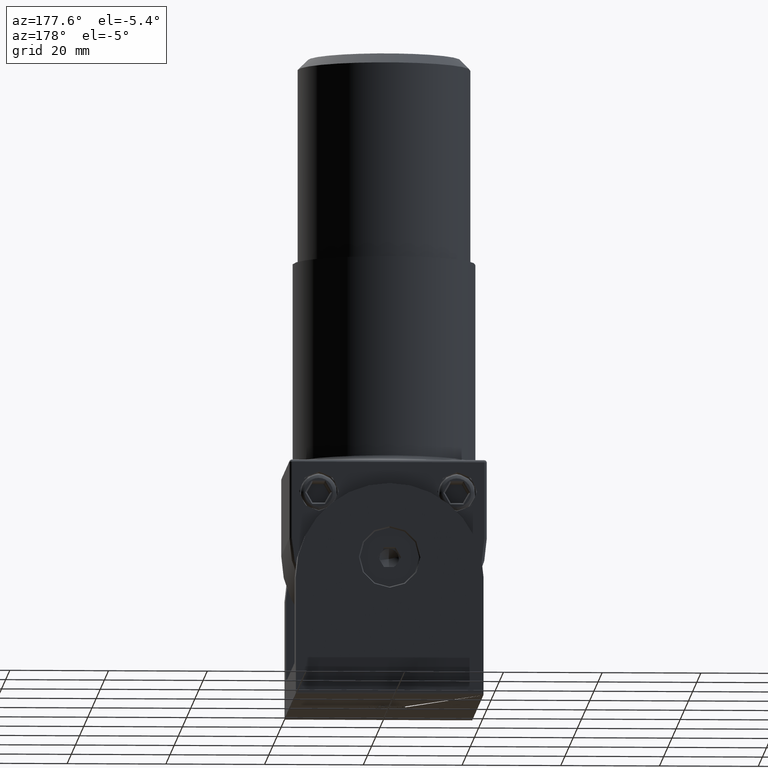
[diagram: clean part render]
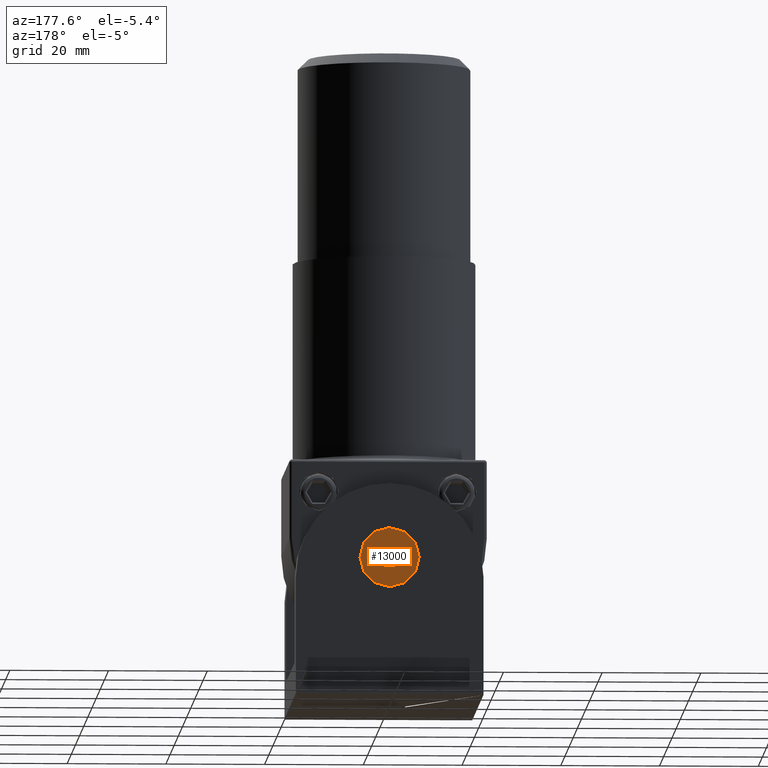
[diagram: same view with one face highlighted and labeled with its STEP entity id]
A machine part, auxiliary view. The second image highlights one B-rep face of the part: STEP entity #13000.
In plain terms, the highlighted planar face has unit normal (0, 1, 0).
Its self-contained STEP definition (entity closure, byte-faithful):
#65 = LINE ( 'NONE', #9892, #12273 ) ;
#155 = EDGE_CURVE ( 'NONE', #4576, #4231, #65, .T. ) ;
#387 = ORIENTED_EDGE ( 'NONE', *, *, #3973, .F. ) ;
#631 = VERTEX_POINT ( 'NONE', #15453 ) ;
#647 = ORIENTED_EDGE ( 'NONE', *, *, #21816, .F. ) ;
#895 = CARTESIAN_POINT ( 'NONE',  ( 0.000000000000000000, 6.000000000000000000, -2.449293598294705921E-16 ) ) ;
#1192 = PLANE ( 'NONE',  #10292 ) ;
#1496 = ORIENTED_EDGE ( 'NONE', *, *, #12399, .F. ) ;
#1626 = CARTESIAN_POINT ( 'NONE',  ( -2.309401076758504257, -8.673617379884035472E-16, -4.898587196589413815E-16 ) ) ;
#1952 = VECTOR ( 'NONE', #4917, 1000.000000000000000 ) ;
#2484 = LINE ( 'NONE', #10353, #1952 ) ;
#2844 = DIRECTION ( 'NONE',  ( 0.5000000000000003331, 0.8660254037844383745, 0.000000000000000000 ) ) ;
#2905 = VECTOR ( 'NONE', #13045, 1000.000000000000114 ) ;
#2949 = AXIS2_PLACEMENT_3D ( 'NONE', #17759, #5266, #14119 ) ;
#3973 = EDGE_CURVE ( 'NONE', #4756, #20402, #12684, .T. ) ;
#4171 = CARTESIAN_POINT ( 'NONE',  ( -1.154700538379251240, 2.000000000000000000, 0.000000000000000000 ) ) ;
#4198 = FACE_BOUND ( 'NONE', #17852, .T. ) ;
#4231 = VERTEX_POINT ( 'NONE', #4171 ) ;
#4233 = VERTEX_POINT ( 'NONE', #11003 ) ;
#4576 = VERTEX_POINT ( 'NONE', #1626 ) ;
#4756 = VERTEX_POINT ( 'NONE', #11440 ) ;
#4917 = DIRECTION ( 'NONE',  ( -0.4999999999999998890, 0.8660254037844387076, 0.000000000000000000 ) ) ;
#5171 = ORIENTED_EDGE ( 'NONE', *, *, #155, .F. ) ;
#5266 = DIRECTION ( 'NONE',  ( -0.000000000000000000, 1.224646799147353207E-16, -1.000000000000000000 ) ) ;
#5389 = EDGE_CURVE ( 'NONE', #4231, #631, #5571, .T. ) ;
#5415 = AXIS2_PLACEMENT_3D ( 'NONE', #17532, #12120, #19316 ) ;
#5455 = CARTESIAN_POINT ( 'NONE',  ( 1.154700538379251906, -1.999999999999999556, -0.000000000000000000 ) ) ;
#5571 = LINE ( 'NONE', #17708, #21644 ) ;
#6055 = CARTESIAN_POINT ( 'NONE',  ( 1.154700538379252350, 1.999999999999999112, 0.000000000000000000 ) ) ;
#6113 = FACE_OUTER_BOUND ( 'NONE', #20878, .T. ) ;
#6136 = LINE ( 'NONE', #7469, #20027 ) ;
#6920 = DIRECTION ( 'NONE',  ( 1.000000000000000000, -3.755786496842898071E-16, 0.000000000000000000 ) ) ;
#7388 = VECTOR ( 'NONE', #12371, 1000.000000000000000 ) ;
#7434 = ORIENTED_EDGE ( 'NONE', *, *, #7458, .T. ) ;
#7458 = EDGE_CURVE ( 'NONE', #15774, #4233, #14346, .T. ) ;
#7469 = CARTESIAN_POINT ( 'NONE',  ( 2.309401076758503368, -6.649504047483846988E-18, -0.000000000000000000 ) ) ;
#9257 = DIRECTION ( 'NONE',  ( -0.4999999999999999445, -0.8660254037844385966, 0.000000000000000000 ) ) ;
#9892 = CARTESIAN_POINT ( 'NONE',  ( -2.309401076758504257, -3.962830080164986935E-16, 0.000000000000000000 ) ) ;
#10292 = AXIS2_PLACEMENT_3D ( 'NONE', #22515, #13663, #20722 ) ;
#10353 = CARTESIAN_POINT ( 'NONE',  ( -1.154700538379253238, -1.999999999999999556, 0.000000000000000000 ) ) ;
#11003 = CARTESIAN_POINT ( 'NONE',  ( 7.347880794884119736E-16, -6.000000000000000000, -1.714505518806294638E-15 ) ) ;
#11440 = CARTESIAN_POINT ( 'NONE',  ( 1.154700538379251906, -1.999999999999999556, -0.000000000000000000 ) ) ;
#12120 = DIRECTION ( 'NONE',  ( -0.000000000000000000, 1.224646799147353207E-16, -1.000000000000000000 ) ) ;
#12273 = VECTOR ( 'NONE', #2844, 1000.000000000000114 ) ;
#12371 = DIRECTION ( 'NONE',  ( -1.000000000000000000, 0.000000000000000000, 0.000000000000000000 ) ) ;
#12399 = EDGE_CURVE ( 'NONE', #20734, #4756, #6136, .T. ) ;
#12684 = LINE ( 'NONE', #5455, #7388 ) ;
#13000 = ADVANCED_FACE ( 'NONE', ( #4198, #6113 ), #1192, .T. ) ;
#13045 = DIRECTION ( 'NONE',  ( 0.4999999999999999445, -0.8660254037844385966, -0.000000000000000000 ) ) ;
#13663 = DIRECTION ( 'NONE',  ( -0.000000000000000000, 1.224646799147353207E-16, -1.000000000000000000 ) ) ;
#13796 = CARTESIAN_POINT ( 'NONE',  ( 2.309401076758503368, -6.649504047483846988E-18, -0.000000000000000000 ) ) ;
#14119 = DIRECTION ( 'NONE',  ( 0.000000000000000000, 1.000000000000000000, 1.224646799147353207E-16 ) ) ;
#14278 = LINE ( 'NONE', #6055, #2905 ) ;
#14346 = CIRCLE ( 'NONE', #2949, 6.000000000000000000 ) ;
#14946 = ORIENTED_EDGE ( 'NONE', *, *, #17835, .T. ) ;
#15453 = CARTESIAN_POINT ( 'NONE',  ( 1.154700538379252350, 1.999999999999999112, 0.000000000000000000 ) ) ;
#15607 = CARTESIAN_POINT ( 'NONE',  ( -1.154700538379253238, -1.999999999999999556, 0.000000000000000000 ) ) ;
#15774 = VERTEX_POINT ( 'NONE', #895 ) ;
#17170 = EDGE_CURVE ( 'NONE', #20402, #4576, #2484, .T. ) ;
#17532 = CARTESIAN_POINT ( 'NONE',  ( 0.000000000000000000, 1.199807826129486086E-31, -9.797174393178825657E-16 ) ) ;
#17708 = CARTESIAN_POINT ( 'NONE',  ( -1.154700538379251240, 2.000000000000000000, 0.000000000000000000 ) ) ;
#17759 = CARTESIAN_POINT ( 'NONE',  ( 0.000000000000000000, 1.199807826129486086E-31, -9.797174393178825657E-16 ) ) ;
#17835 = EDGE_CURVE ( 'NONE', #4233, #15774, #18288, .T. ) ;
#17852 = EDGE_LOOP ( 'NONE', ( #20036, #387, #1496, #647, #20629, #5171 ) ) ;
#18288 = CIRCLE ( 'NONE', #5415, 6.000000000000000000 ) ;
#19316 = DIRECTION ( 'NONE',  ( 0.000000000000000000, 1.000000000000000000, 1.224646799147353207E-16 ) ) ;
#20027 = VECTOR ( 'NONE', #9257, 1000.000000000000114 ) ;
#20036 = ORIENTED_EDGE ( 'NONE', *, *, #17170, .F. ) ;
#20402 = VERTEX_POINT ( 'NONE', #15607 ) ;
#20629 = ORIENTED_EDGE ( 'NONE', *, *, #5389, .F. ) ;
#20722 = DIRECTION ( 'NONE',  ( 0.000000000000000000, 1.000000000000000000, 1.224646799147353207E-16 ) ) ;
#20734 = VERTEX_POINT ( 'NONE', #13796 ) ;
#20878 = EDGE_LOOP ( 'NONE', ( #7434, #14946 ) ) ;
#21644 = VECTOR ( 'NONE', #6920, 1000.000000000000000 ) ;
#21816 = EDGE_CURVE ( 'NONE', #631, #20734, #14278, .T. ) ;
#22515 = CARTESIAN_POINT ( 'NONE',  ( 0.000000000000000000, 6.000000000000000000, 2.449293598294706907E-16 ) ) ;